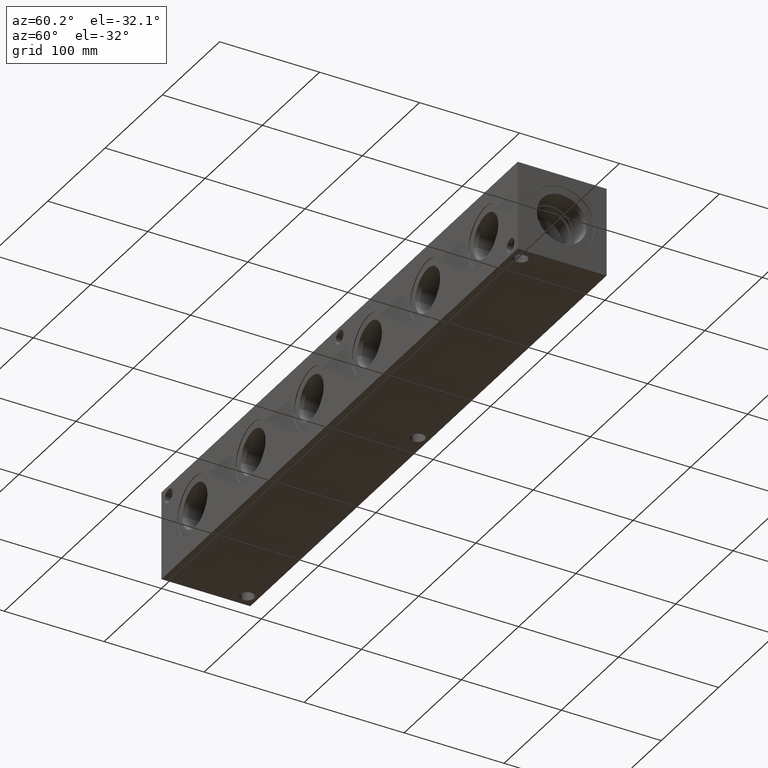
[diagram: clean part render]
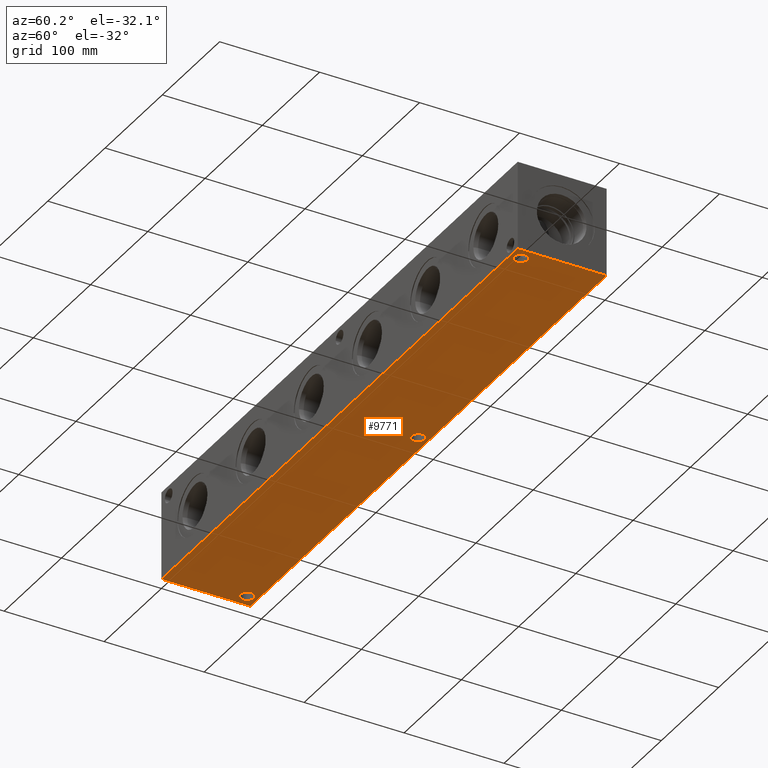
[diagram: same view with one face highlighted and labeled with its STEP entity id]
A machine part, auxiliary view. The second image highlights one B-rep face of the part: STEP entity #9771.
In plain terms, the highlighted planar face has unit normal (0, 0, 1).
Its self-contained STEP definition (entity closure, byte-faithful):
#408=CIRCLE('',#10326,6.7437);
#409=CIRCLE('',#10328,6.7437);
#410=CIRCLE('',#10330,6.7437);
#597=FACE_BOUND('',#2111,.T.);
#598=FACE_BOUND('',#2112,.T.);
#599=FACE_BOUND('',#2113,.T.);
#1517=FACE_OUTER_BOUND('',#2110,.T.);
#2110=EDGE_LOOP('',(#8702,#8703,#8704,#8705));
#2111=EDGE_LOOP('',(#8706));
#2112=EDGE_LOOP('',(#8707));
#2113=EDGE_LOOP('',(#8708));
#2871=LINE('',#17560,#3631);
#2874=LINE('',#17565,#3634);
#2876=LINE('',#17569,#3636);
#2878=LINE('',#17572,#3638);
#3631=VECTOR('',#12716,10.);
#3634=VECTOR('',#12721,10.);
#3636=VECTOR('',#12725,10.);
#3638=VECTOR('',#12729,10.);
#4442=VERTEX_POINT('',#17199);
#4443=VERTEX_POINT('',#17203);
#4444=VERTEX_POINT('',#17207);
#4555=VERTEX_POINT('',#17558);
#4556=VERTEX_POINT('',#17559);
#4557=VERTEX_POINT('',#17564);
#4558=VERTEX_POINT('',#17568);
#5767=EDGE_CURVE('',#4442,#4442,#408,.T.);
#5769=EDGE_CURVE('',#4443,#4443,#409,.T.);
#5771=EDGE_CURVE('',#4444,#4444,#410,.T.);
#5935=EDGE_CURVE('',#4555,#4556,#2871,.T.);
#5938=EDGE_CURVE('',#4557,#4555,#2874,.T.);
#5940=EDGE_CURVE('',#4558,#4557,#2876,.T.);
#5942=EDGE_CURVE('',#4556,#4558,#2878,.T.);
#8702=ORIENTED_EDGE('',*,*,#5942,.F.);
#8703=ORIENTED_EDGE('',*,*,#5935,.F.);
#8704=ORIENTED_EDGE('',*,*,#5938,.F.);
#8705=ORIENTED_EDGE('',*,*,#5940,.F.);
#8706=ORIENTED_EDGE('',*,*,#5767,.T.);
#8707=ORIENTED_EDGE('',*,*,#5769,.T.);
#8708=ORIENTED_EDGE('',*,*,#5771,.T.);
#8953=PLANE('',#10515);
#9771=ADVANCED_FACE('',(#1517,#597,#598,#599),#8953,.F.);
#10326=AXIS2_PLACEMENT_3D('',#17201,#12286,#12287);
#10328=AXIS2_PLACEMENT_3D('',#17205,#12291,#12292);
#10330=AXIS2_PLACEMENT_3D('',#17209,#12296,#12297);
#10515=AXIS2_PLACEMENT_3D('',#17574,#12732,#12733);
#12286=DIRECTION('center_axis',(0.,0.,1.));
#12287=DIRECTION('ref_axis',(1.,0.,0.));
#12291=DIRECTION('center_axis',(0.,0.,1.));
#12292=DIRECTION('ref_axis',(1.,0.,0.));
#12296=DIRECTION('center_axis',(0.,0.,1.));
#12297=DIRECTION('ref_axis',(1.,0.,0.));
#12716=DIRECTION('',(0.,-1.,0.));
#12721=DIRECTION('',(-1.,0.,0.));
#12725=DIRECTION('',(0.,1.,0.));
#12729=DIRECTION('',(1.,0.,0.));
#12732=DIRECTION('center_axis',(0.,0.,1.));
#12733=DIRECTION('ref_axis',(1.,0.,0.));
#17199=CARTESIAN_POINT('',(304.4063,78.5876,0.));
#17201=CARTESIAN_POINT('Origin',(311.15,78.5876,0.));
#17203=CARTESIAN_POINT('',(5.9563,78.5876,0.));
#17205=CARTESIAN_POINT('Origin',(12.7,78.5876,0.));
#17207=CARTESIAN_POINT('',(602.8563,10.3124,0.));
#17209=CARTESIAN_POINT('Origin',(609.6,10.3124,0.));
#17558=CARTESIAN_POINT('',(0.,88.9,0.));
#17559=CARTESIAN_POINT('',(0.,0.,0.));
#17560=CARTESIAN_POINT('',(0.,88.9,0.));
#17564=CARTESIAN_POINT('',(622.3,88.9,0.));
#17565=CARTESIAN_POINT('',(622.3,88.9,0.));
#17568=CARTESIAN_POINT('',(622.3,0.,0.));
#17569=CARTESIAN_POINT('',(622.3,0.,0.));
#17572=CARTESIAN_POINT('',(0.,0.,0.));
#17574=CARTESIAN_POINT('Origin',(311.15,44.45,0.));